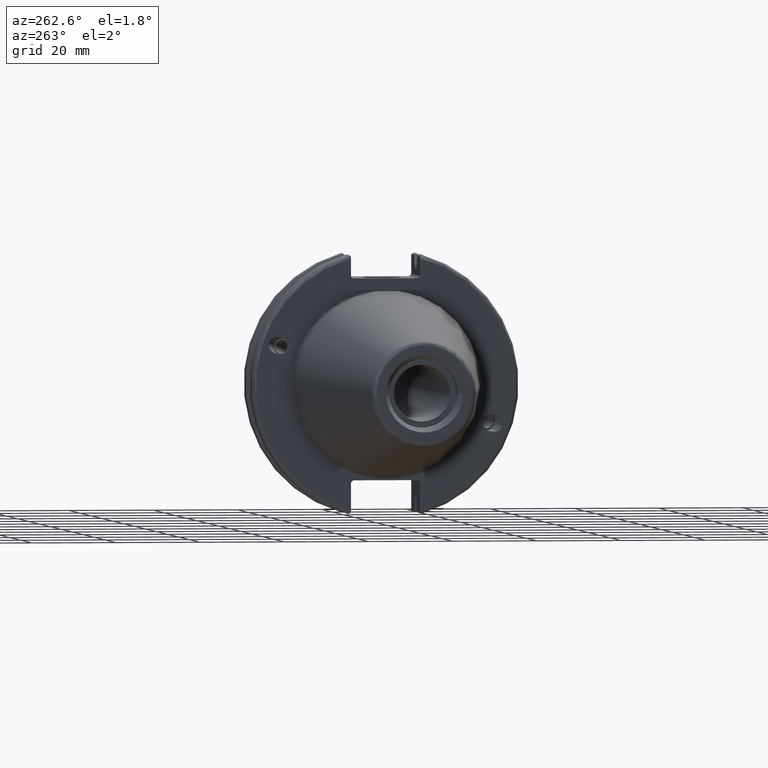
[diagram: clean part render]
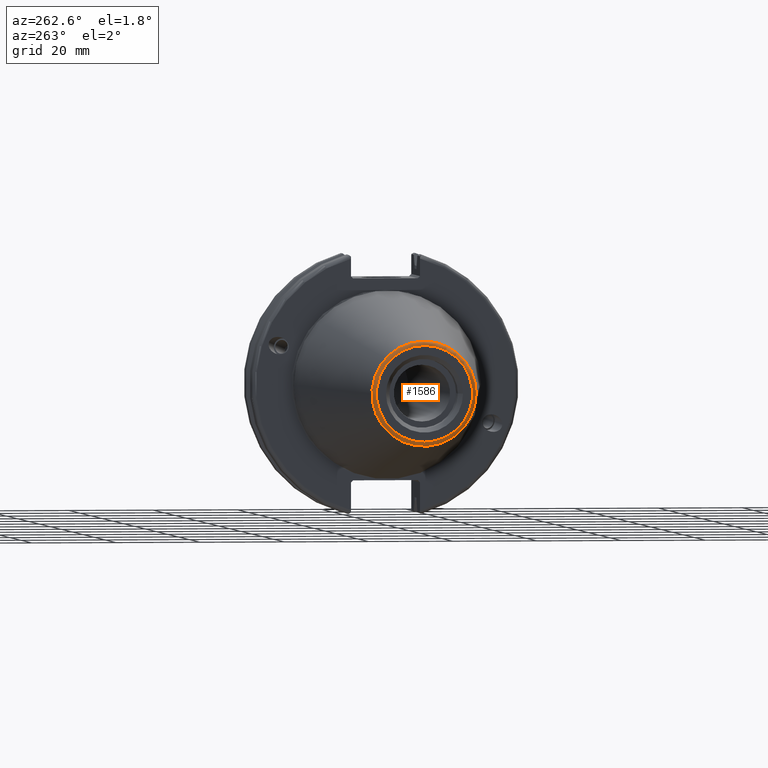
[diagram: same view with one face highlighted and labeled with its STEP entity id]
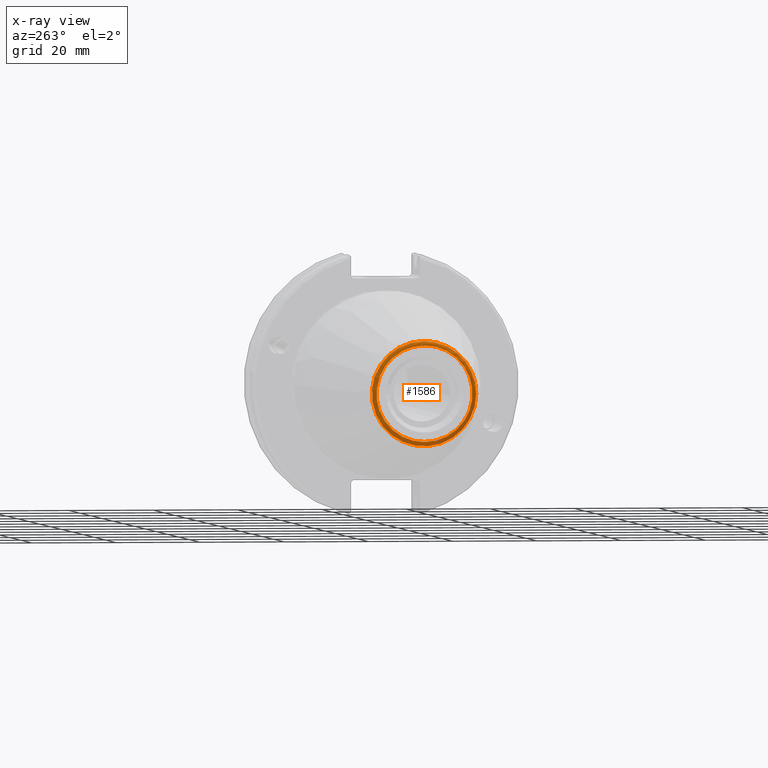
[diagram: x-ray of the same camera — body ghosted, the highlighted face saturated]
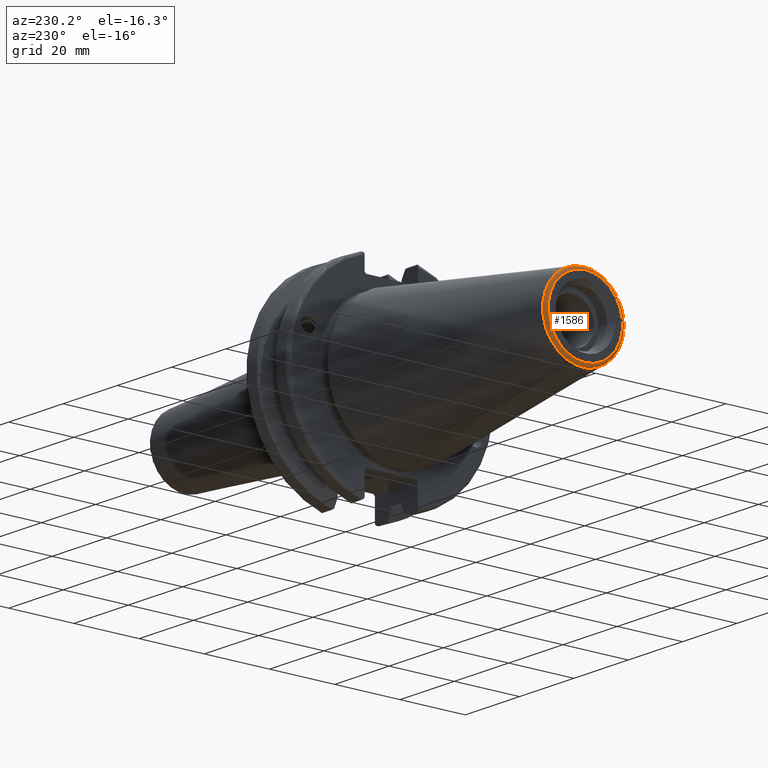
[diagram: same view with one face highlighted and labeled with its STEP entity id]
A machine part, auxiliary view. The second image highlights one B-rep face of the part: STEP entity #1586.
The next image is the same camera in x-ray: the body ghosted, the highlighted face saturated — about 0% of this face is hidden behind the body in this view.
A second angle (auxiliary view) of the same face is appended — the face is thin or edge-on in the first view.
In plain terms, the highlighted toroidal blend (fillet) surface has major radius 11.4071 mm and minor (blend) radius 1 mm.
Its self-contained STEP definition (entity closure, byte-faithful):
#124=TOROIDAL_SURFACE('',#1778,11.4071305970304,1.);
#234=FACE_OUTER_BOUND('',#339,.T.);
#339=EDGE_LOOP('',(#1374,#1375,#1376,#1377,#1378));
#624=CIRCLE('',#1779,12.3966635780937);
#625=CIRCLE('',#1780,12.3966635780937);
#626=CIRCLE('',#1781,1.);
#627=CIRCLE('',#1782,11.4071305970304);
#784=VERTEX_POINT('',#2999);
#785=VERTEX_POINT('',#3000);
#786=VERTEX_POINT('',#3003);
#998=EDGE_CURVE('',#784,#785,#624,.T.);
#999=EDGE_CURVE('',#785,#784,#625,.T.);
#1000=EDGE_CURVE('',#784,#786,#626,.T.);
#1001=EDGE_CURVE('',#786,#786,#627,.T.);
#1374=ORIENTED_EDGE('',*,*,#998,.T.);
#1375=ORIENTED_EDGE('',*,*,#999,.T.);
#1376=ORIENTED_EDGE('',*,*,#1000,.T.);
#1377=ORIENTED_EDGE('',*,*,#1001,.T.);
#1378=ORIENTED_EDGE('',*,*,#1000,.F.);
#1586=ADVANCED_FACE('',(#234),#124,.T.);
#1778=AXIS2_PLACEMENT_3D('',#2998,#2180,#2181);
#1779=AXIS2_PLACEMENT_3D('',#3001,#2182,#2183);
#1780=AXIS2_PLACEMENT_3D('',#3002,#2184,#2185);
#1781=AXIS2_PLACEMENT_3D('',#3004,#2186,#2187);
#1782=AXIS2_PLACEMENT_3D('',#3005,#2188,#2189);
#2180=DIRECTION('center_axis',(1.,0.,0.));
#2181=DIRECTION('ref_axis',(0.,0.,-1.));
#2182=DIRECTION('center_axis',(-1.,0.,0.));
#2183=DIRECTION('ref_axis',(0.,-1.,3.06161699786838E-17));
#2184=DIRECTION('center_axis',(-1.,0.,0.));
#2185=DIRECTION('ref_axis',(0.,-1.,3.06161699786838E-17));
#2186=DIRECTION('center_axis',(0.,-1.,-1.22464679914735E-16));
#2187=DIRECTION('ref_axis',(0.,-1.22464679914735E-16,1.));
#2188=DIRECTION('center_axis',(1.,0.,0.));
#2189=DIRECTION('ref_axis',(0.,-1.,1.83697019872103E-16));
#2998=CARTESIAN_POINT('Origin',(-67.25,0.,0.));
#2999=CARTESIAN_POINT('',(-67.3943068930717,-1.5181534371019E-15,12.3966635780937));
#3000=CARTESIAN_POINT('',(-67.3943068930718,-12.3966635780937,-1.5181534371019E-15));
#3001=CARTESIAN_POINT('Origin',(-67.3943068930717,0.,-1.89769179637738E-15));
#3002=CARTESIAN_POINT('Origin',(-67.3943068930717,0.,-1.89769179637738E-15));
#3003=CARTESIAN_POINT('',(-68.25,-1.39697059731091E-15,11.4071305970304));
#3004=CARTESIAN_POINT('Origin',(-67.25,-1.39697059731091E-15,11.4071305970304));
#3005=CARTESIAN_POINT('Origin',(-68.25,0.,0.));